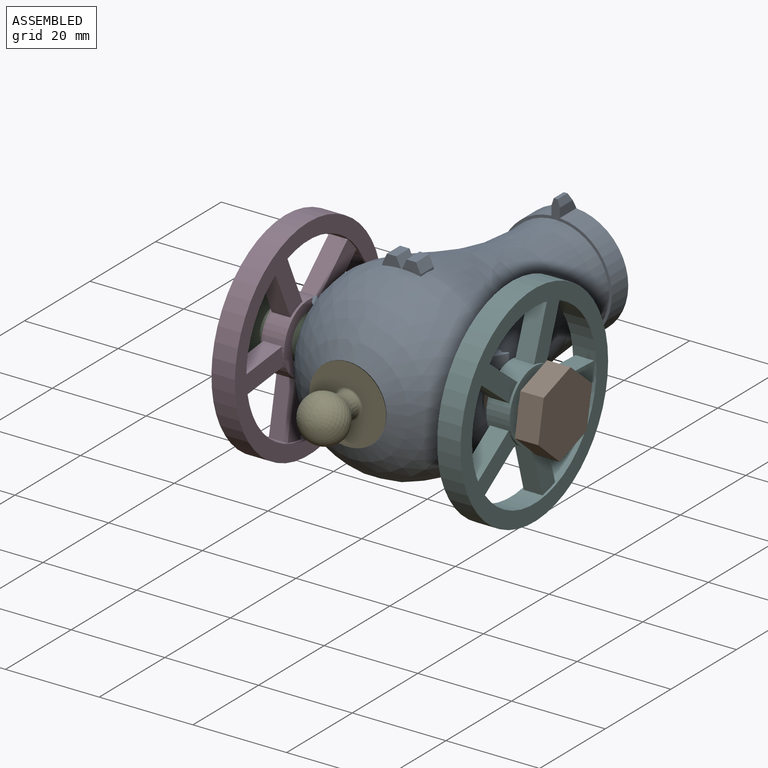
[diagram: assembled view]
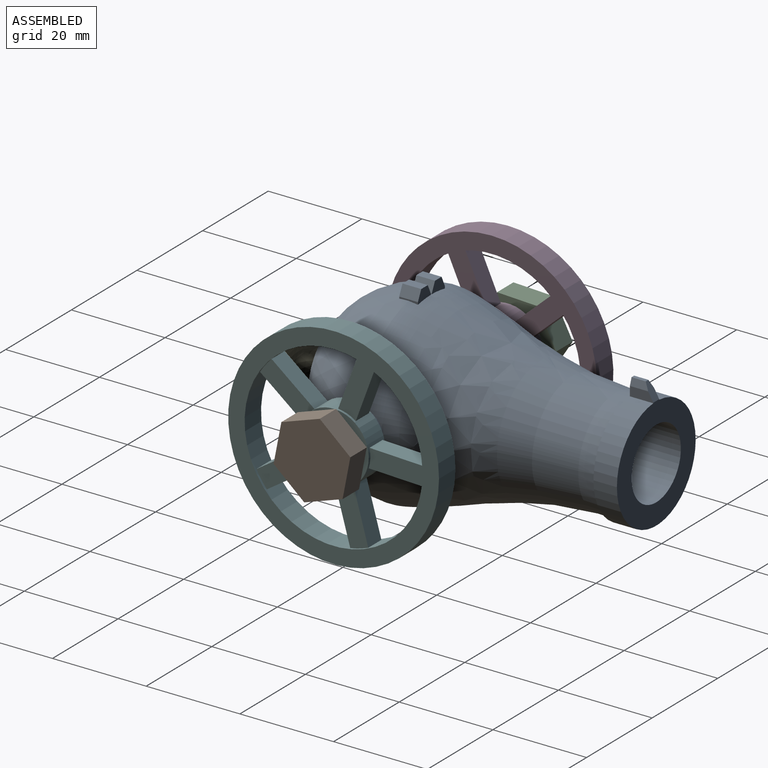
[diagram: assembled view, second angle]
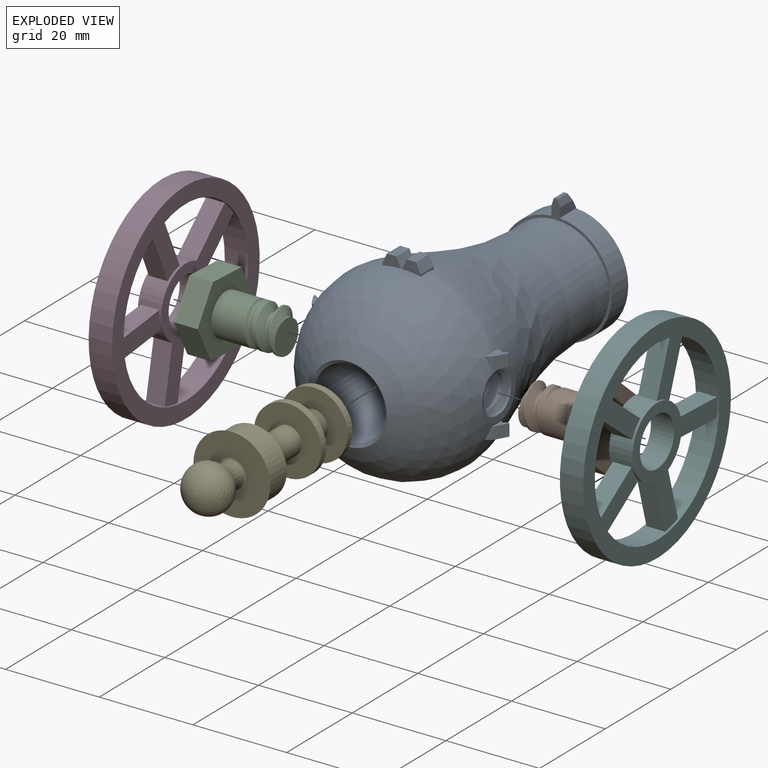
[diagram: exploded view]
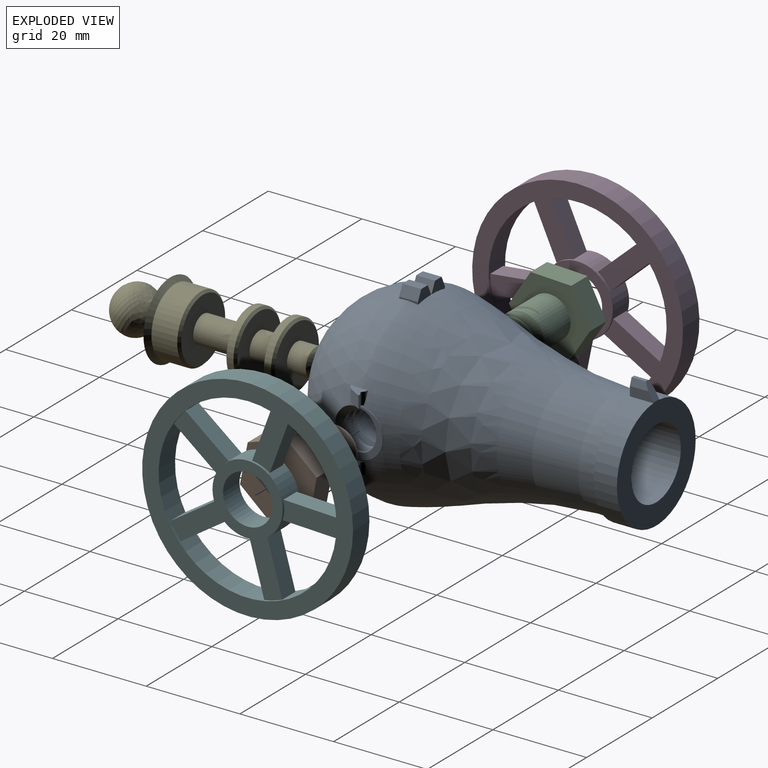
[diagram: exploded view, second angle]
ASSEMBLY  parts=6 mates=5
PART A: 88 faces, bbox 121.1x147.7x121.4 mm
  f0: sphere r=20mm, area 2165.9mm2, adj f1,f14,f15,f18,f19,f22,f24,f26
  f1: revolved ~45x40mm, area 8242.6mm2, adj f0,f5,f12,f13,f15,f17,f18,f20
  f2: cylinder r=12mm len=24mm, axis (0,1,0), area 368mm2, adj f3,f5,f6,f10
  f3: plane 24.07x24mm, normal (0,1,0), area 275.8mm2, adj f2,f4,f6,f10,f11
  f4: cylinder r=7.5mm len=67.77mm, axis (0,1,0), area 3193.8mm2, adj f3,f87
  f5: plane 27.47x24mm, normal (0,-1,0), area 48.4mm2, adj f1,f2,f6,f7,f8,f9,f10
  f6: plane 5x2mm, normal (-1,0,0), area 9mm2, adj f2,f3,f5,f7,f11
  f7: plane 3.9x1.5mm, normal (-0.95,0,0.32), area 5.5mm2, adj f5,f6,f8,f11
  f8: plane 3.04x0.8mm, normal (0,0,1), area 2.4mm2, adj f5,f7,f9,f11
  f9: plane 3.9x1.5mm, normal (0.95,0,0.32), area 5.5mm2, adj f5,f8,f10,f11
  f10: plane 5x2mm, normal (1,0,0), area 9mm2, adj f2,f3,f5,f9,f11
  f11: plane 3.4x1.96mm, normal (0,0.87,0.5), area 6.2mm2, adj f3,f6,f7,f8,f9,f10
  f12: plane 4x2.65mm, normal (0,1,0), area 7.3mm2, adj f1,f13,f15,f16,f24,f25
  f13: plane 0.51x0.08mm, normal (-1,0,0), area 0mm2, adj f1,f12,f24
  f14: plane 3.98x2.53mm, normal (0,-1,0), area 6.8mm2, adj f0,f15,f16,f24,f25
  f15: plane 4.06x0.56mm, normal (1,0,0), area 1.4mm2, adj f0,f1,f12,f14,f25
  f16: plane 4x2mm, normal (0,0,1), area 8mm2, adj f12,f14,f24,f25
  f17: plane 4x2.65mm, normal (0,1,0), area 7.3mm2, adj f1,f18,f20,f21,f22,f23
  f18: plane 4.06x0.56mm, normal (-1,0,0), area 1.4mm2, adj f0,f1,f17,f19,f23
  f19: plane 3.98x2.53mm, normal (0,-1,0), area 6.8mm2, adj f0,f18,f21,f22,f23
  f20: plane 79.93x79.5mm, normal (1,0,0), area 0mm2, adj f1,f17,f22
  f21: plane 4x2mm, normal (0,0,1), area 8mm2, adj f17,f19,f22,f23
  f22: plane 83.42x81.57mm, normal (0.91,0,0.42), area 9.1mm2, adj f0,f1,f17,f19,f20,f21
  f23: plane 4x2.14mm, normal (-0.91,0,0.42), area 9.5mm2, adj f17,f18,f19,f21
  f24: plane 4.03x2.18mm, normal (-0.91,0,0.42), area 9.1mm2, adj f0,f1,f12,f13,f14,f16
  f25: plane 4x2.14mm, normal (0.91,0,0.42), area 9.5mm2, adj f12,f14,f15,f16
  f26: bspline ~12.05x10.43mm, area 19mm2, adj f0,f27,f28,f31,f33,f38
  f27: bspline ~11.79x10.21mm, area 80.1mm2, adj f26,f30,f35,f36,f38
  f28: bspline ~11.79x10.21mm, area 61.7mm2, adj f26,f29,f36,f37,f38
  f29: bspline ~9.58x8.96mm, area 22.3mm2, adj f28,f31,f34,f35,f39
  f30: bspline ~9.62x9.04mm, area 22.2mm2, adj f27,f31,f34,f39
  f31: bspline ~9.85x9.27mm, area 10.3mm2, adj f26,f29,f30,f39
  f32: plane 10x10mm, normal (-1,0,0), area 34.4mm2, adj f34,f40
  f33: cylinder r=5.16mm len=10.31mm, axis (1,0,0), area 1.2mm2, adj f0,f1,f26,f38
  f34: cylinder r=3.75mm len=7.5mm, axis (1,0,0), area 41.8mm2, adj f29,f30,f32,f35,f39
  f35: cylinder r=3.75mm len=7.5mm, axis (1,0,0), area 23.2mm2, adj f27,f29,f34,f36
  f36: cylinder r=3.75mm len=7.5mm, axis (1,0,0), area 14.7mm2, adj f27,f28,f35,f37
  f37: cylinder r=3.75mm len=3.75mm, axis (1,0,0), area 1.8mm2, adj f28,f36,f38
  f38: plane 11x11mm, normal (1,0,0), area 23.3mm2, adj f26,f27,f28,f33,f37
  f39: plane 0.44x0.19mm, normal (0.03,1,-0.01), area 0.1mm2, adj f29,f30,f31,f34
  f40: cone r=0mm half-angle=59deg, axis (1,0,0), area 91.6mm2, adj f32
  f41: cone r=0mm half-angle=59deg, axis (-1,0,0), area 91.6mm2, adj f46,f47
  f42: bspline ~12.15x10.52mm, area 36.1mm2, adj f0,f44,f45,f46,f48,f49
  f43: bspline ~6.21x4.79mm, area 5.5mm2, adj f45,f49,f50
  f44: bspline ~11.83x10.44mm, area 130.4mm2, adj f42,f46,f47,f49,f50
  f45: bspline ~11.83x10.25mm, area 123.3mm2, adj f42,f43,f46,f47,f49,f50
  f46: plane 3.77x3.71mm, normal (-1,0,0), area 0.9mm2, adj f41,f42,f44,f45
  f47: plane 10.67x10.67mm, normal (1,0,0), area 22.3mm2, adj f41,f44,f45,f50
  f48: cylinder r=5.19mm len=10.38mm, axis (1,0,0), area 1.5mm2, adj f0,f1,f42,f49
  f49: plane 10.95x10.95mm, normal (-1,0,0), area 28.8mm2, adj f42,f43,f44,f45,f48,f50
  f50: cylinder r=3.5mm len=7.67mm, axis (1,0,0), area 42.8mm2, adj f43,f44,f45,f47,f49
  f51: plane 0.92x0.38mm, normal (0,1,0), area 0.2mm2, adj f1,f53,f58
  f52: plane 3.06x1.7mm, normal (0,0,-1), area 2.4mm2, adj f0,f1,f54,f55,f56,f57,f58,f59
  f53: plane 3.72x2.74mm, normal (0,0,1), area 5.5mm2, adj f0,f1,f51,f54,f55,f56,f57,f58
  f54: cylinder r=0.5mm len=2.59mm, axis (0,0,1), area 2.2mm2, adj f52,f53,f57,f58
  f55: plane 2.59x1.94mm, normal (-0.87,-0.49,0), area 5.7mm2, adj f52,f53,f56,f59
  f56: cylinder r=3mm len=2.59mm, axis (0,0,1), area 3.9mm2, adj f0,f52,f53,f55
  f57: cylinder r=1mm len=2.59mm, axis (0,0,1), area 2.2mm2, adj f52,f53,f54,f59
  f58: cylinder r=1mm len=2.59mm, axis (0,0,1), area 1.7mm2, adj f1,f51,f52,f53,f54
  f59: cylinder r=0.5mm len=2.59mm, axis (0,0,1), area 1.1mm2, adj f52,f53,f55,f57
  f60: plane 0.92x0.38mm, normal (0,1,0), area 0.2mm2, adj f1,f62,f67
  f61: plane 3.06x1.7mm, normal (0,0,-1), area 2.4mm2, adj f0,f1,f63,f64,f65,f66,f67,f68
  f62: plane 3.72x2.74mm, normal (0,0,1), area 5.5mm2, adj f0,f1,f60,f63,f64,f65,f66,f67
  f63: cylinder r=0.5mm len=2.59mm, axis (0,0,1), area 2.2mm2, adj f61,f62,f66,f67
  f64: plane 2.59x1.94mm, normal (0.87,-0.49,0), area 5.7mm2, adj f61,f62,f65,f68
  f65: cylinder r=3mm len=2.59mm, axis (0,0,1), area 3.9mm2, adj f0,f61,f62,f64
  f66: cylinder r=1mm len=2.59mm, axis (0,0,1), area 2.2mm2, adj f61,f62,f63,f68
  f67: cylinder r=1mm len=2.59mm, axis (0,0,1), area 1.7mm2, adj f1,f60,f61,f62,f63
  f68: cylinder r=0.5mm len=2.59mm, axis (0,0,1), area 1.1mm2, adj f61,f62,f64,f66
  f69: plane 0.92x0.38mm, normal (0,1,0), area 0.2mm2, adj f1,f71,f76
  f70: plane 3.06x1.7mm, normal (0,0,1), area 2.4mm2, adj f0,f1,f72,f73,f74,f75,f76,f77
  f71: plane 3.72x2.74mm, normal (0,0,-1), area 5.5mm2, adj f0,f1,f69,f72,f73,f74,f75,f76
  f72: cylinder r=0.5mm len=2.59mm, axis (0,0,-1), area 2.2mm2, adj f70,f71,f75,f76
  f73: plane 2.59x1.94mm, normal (-0.87,-0.49,0), area 5.7mm2, adj f70,f71,f74,f77
  f74: cylinder r=3mm len=2.59mm, axis (0,0,-1), area 3.9mm2, adj f0,f70,f71,f73
  f75: cylinder r=1mm len=2.59mm, axis (0,0,-1), area 2.2mm2, adj f70,f71,f72,f77
  f76: cylinder r=1mm len=2.59mm, axis (0,0,-1), area 1.7mm2, adj f1,f69,f70,f71,f72
  f77: cylinder r=0.5mm len=2.59mm, axis (0,0,-1), area 1.1mm2, adj f70,f71,f73,f75
  f78: plane 0.92x0.38mm, normal (0,1,0), area 0.2mm2, adj f1,f80,f85
  f79: plane 3.06x1.7mm, normal (0,0,1), area 2.4mm2, adj f0,f1,f81,f82,f83,f84,f85,f86
  f80: plane 3.72x2.74mm, normal (0,0,-1), area 5.5mm2, adj f0,f1,f78,f81,f82,f83,f84,f85
  f81: cylinder r=0.5mm len=2.59mm, axis (0,0,-1), area 2.2mm2, adj f79,f80,f84,f85
  f82: plane 2.59x1.94mm, normal (0.87,-0.49,0), area 5.7mm2, adj f79,f80,f83,f86
  f83: cylinder r=3mm len=2.59mm, axis (0,0,-1), area 3.9mm2, adj f0,f79,f80,f82
  f84: cylinder r=1mm len=2.59mm, axis (0,0,-1), area 2.2mm2, adj f79,f80,f81,f86
  f85: cylinder r=1mm len=2.59mm, axis (0,0,-1), area 1.7mm2, adj f1,f78,f79,f80,f81
  f86: cylinder r=0.5mm len=2.59mm, axis (0,0,-1), area 1.1mm2, adj f79,f80,f82,f84
  f87: cone r=8.21mm half-angle=57.1deg, axis (0,-1,0), area 41.9mm2, adj f0,f4
PART B: 18 faces, bbox 18.1x15.8x20 mm
  f0: cylinder r=4.5mm len=11.5mm, axis (0,0,1), area 233.1mm2, adj f1,f10,f13,f14,f15,f17
  f1: cylinder r=4.5mm len=9mm, axis (0,0,1), area 5.9mm2, adj f0,f2,f12,f13
  f2: plane 8.05x8.04mm, normal (0,0,-1), area 41.1mm2, adj f1,f11,f12,f13
  f3: plane 7.5x5mm, normal (-0.87,-0.5,0), area 43.3mm2, adj f4,f8,f9,f10
  f4: plane 8.66x5mm, normal (0,-1,0), area 43.3mm2, adj f3,f5,f9,f10
  f5: plane 7.5x5mm, normal (0.87,-0.5,0), area 43.3mm2, adj f4,f6,f9,f10
  f6: plane 7.5x5mm, normal (0.87,0.5,0), area 43.3mm2, adj f5,f7,f9,f10
  f7: plane 8.66x5mm, normal (0,1,0), area 43.3mm2, adj f6,f8,f9,f10
  f8: plane 7.5x5mm, normal (-0.87,0.5,0), area 43.3mm2, adj f3,f7,f9,f10
  f9: plane 17.32x15mm, normal (0,0,1), area 194.9mm2, adj f3,f4,f5,f6,f7,f8
  f10: plane 17.32x15mm, normal (0,0,-1), area 131.2mm2, adj f0,f3,f4,f5,f6,f7,f8
  f11: bspline ~6.64x5.75mm, area 15.6mm2, adj f2,f12,f13,f16
  f12: bspline ~10.39x9mm, area 33.6mm2, adj f1,f2,f11,f15
  f13: bspline ~10.39x9mm, area 59.3mm2, adj f0,f1,f2,f11,f17
  f14: plane 0.92x0.31mm, normal (0.01,-1,0.03), area 0.2mm2, adj f0,f15,f16,f17
  f15: bspline ~11.24x10.5mm, area 25.3mm2, adj f0,f12,f14,f16
  f16: bspline ~8.02x7.29mm, area 18.6mm2, adj f11,f14,f15,f17
  f17: bspline ~11.28x10.57mm, area 25.1mm2, adj f0,f13,f14,f16
PART C: same geometry as B
PART D: 28 faces, bbox 5x45x45 mm
  f0: cylinder r=19mm len=38mm, axis (-1,0,0), area 516.8mm2, adj f2,f3,f8,f9,f10,f11,f12,f13
  f1: cylinder r=22.5mm len=45mm, axis (-1,0,0), area 706.9mm2, adj f2,f3
  f2: plane 45x45mm, normal (1,0,0), area 456.3mm2, adj f0,f1
  f3: plane 45x45mm, normal (-1,0,0), area 456.3mm2, adj f0,f1
  f4: cylinder r=5.25mm len=10.5mm, axis (-1,0,0), area 164.9mm2, adj f6,f7
  f5: cylinder r=7.5mm len=15mm, axis (-1,0,0), area 154.6mm2, adj f6,f7,f8,f9,f10,f11,f12,f13
  f6: plane 15x15mm, normal (1,0,0), area 90.1mm2, adj f4,f5
  f7: plane 15x15mm, normal (-1,0,0), area 90.1mm2, adj f4,f5
  f8: plane 9.44x6.86mm, normal (0,-0.81,-0.59), area 46.7mm2, adj f0,f5,f10,f11
  f9: plane 9.44x6.86mm, normal (0,0.81,0.59), area 46.7mm2, adj f0,f5,f10,f11
  f10: plane 11.79x10.09mm, normal (1,0,0), area 46.2mm2, adj f0,f5,f8,f9
  f11: plane 11.79x10.09mm, normal (-1,0,0), area 46.2mm2, adj f0,f5,f8,f9
  f12: plane 11.1x4mm, normal (0,-0.31,0.95), area 46.7mm2, adj f0,f5,f14,f15
  f13: plane 11.1x4mm, normal (0,0.31,-0.95), area 46.7mm2, adj f0,f5,f14,f15
  f14: plane 12.33x7.41mm, normal (1,0,0), area 46.2mm2, adj f0,f5,f12,f13
  f15: plane 12.33x7.41mm, normal (-1,0,0), area 46.2mm2, adj f0,f5,f12,f13
  f16: plane 11.67x4mm, normal (0,1,0), area 46.7mm2, adj f0,f5,f18,f19
  f17: plane 11.67x4mm, normal (0,-1,0), area 46.7mm2, adj f0,f5,f18,f19
  f18: plane 11.77x4mm, normal (1,0,0), area 46.2mm2, adj f0,f5,f16,f17
  f19: plane 11.77x4mm, normal (-1,0,0), area 46.2mm2, adj f0,f5,f16,f17
  f20: plane 11.1x4mm, normal (0,-0.31,-0.95), area 46.7mm2, adj f0,f5,f22,f23
  f21: plane 11.1x4mm, normal (0,0.31,0.95), area 46.7mm2, adj f0,f5,f22,f23
  f22: plane 12.33x7.41mm, normal (1,0,0), area 46.2mm2, adj f0,f5,f20,f21
  f23: plane 12.33x7.41mm, normal (-1,0,0), area 46.2mm2, adj f0,f5,f20,f21
  f24: plane 9.44x6.86mm, normal (0,-0.81,0.59), area 46.7mm2, adj f0,f5,f26,f27
  f25: plane 9.44x6.86mm, normal (0,0.81,-0.59), area 46.7mm2, adj f0,f5,f26,f27
  f26: plane 11.79x10.09mm, normal (1,0,0), area 46.2mm2, adj f0,f5,f24,f25
  f27: plane 11.79x10.09mm, normal (-1,0,0), area 46.2mm2, adj f0,f5,f24,f25
PART E: 20 faces, bbox 16.4x44x16.4 mm
  f0: torus R=3.16mm, axis (0,-1,0), area 13mm2, adj f1,f15
  f1: plane 16.4x16.4mm, normal (0,1,0), area 179.9mm2, adj f0,f2
  f2: cone r=8.2mm half-angle=45deg, axis (0,1,0), area 68.4mm2, adj f1,f3
  f3: cylinder r=7.2mm len=14.4mm, axis (0,-1,0), area 248.8mm2, adj f2,f19
  f4: plane 13.4x13.4mm, normal (0,-1,0), area 112.8mm2, adj f5,f19
  f5: cylinder r=3mm len=10mm, axis (0,-1,0), area 188.5mm2, adj f4,f6
  f6: plane 14.4x14.4mm, normal (0,1,0), area 134.6mm2, adj f5,f7
  f7: cylinder r=7.2mm len=14.4mm, axis (0,-1,0), area 67.9mm2, adj f6,f18
  f8: plane 13.4x13.4mm, normal (0,-1,0), area 112.8mm2, adj f9,f18
  f9: cylinder r=3mm len=6mm, axis (0,-1,0), area 113.1mm2, adj f8,f10
  f10: plane 14.4x14.4mm, normal (0,1,0), area 134.6mm2, adj f9,f11
  f11: cylinder r=7.2mm len=14.4mm, axis (0,-1,0), area 67.9mm2, adj f10,f17
  f12: plane 13.4x13.4mm, normal (0,-1,0), area 112.8mm2, adj f13,f17
  f13: cylinder r=3mm len=6mm, axis (0,-1,0), area 75.4mm2, adj f12,f16
  f14: plane 4x4mm, normal (0,-1,0), area 12.6mm2, adj f16
  f15: revolved ~11.56x10.01mm, area 321.7mm2, adj f0
  f16: cone r=2mm half-angle=45deg, axis (0,1,0), area 22.2mm2, adj f13,f14
  f17: cone r=6.7mm half-angle=45deg, axis (0,1,0), area 30.9mm2, adj f11,f12
  f18: cone r=6.7mm half-angle=45deg, axis (0,1,0), area 30.9mm2, adj f7,f8
  f19: cone r=6.7mm half-angle=45deg, axis (0,1,0), area 30.9mm2, adj f3,f4
PART F: same geometry as D
PLACE A t=(-4.1,50,0)mm
PLACE B rot(axis=(-0.67,0.31,-0.67),145.9deg) t=(24.44,0,0)mm
PLACE C rot(axis=(-0.27,-0.92,0.27),94.5deg) t=(-32.68,0,0)mm
PLACE D rot(axis=(-1,0,0),47.5deg) t=(-27.81,0,0)mm
PLACE E rot(axis=(-0.03,0,-1),180deg) t=(-4.1,-25.38,0)mm
PLACE F rot(axis=(-1,0,0),20.3deg) t=(20.35,0,0)mm
MATE cylindrical E.f0 <-> A.f4  axis (0,1,0) through (-4.1,3.62,0)mm
MATE cylindrical C.f0 <-> D.f0  axis (-1,0,0) through (-26.18,0,0)mm
MATE cylindrical F.f4 <-> B.f0  axis (1,0,0) through (22.85,0,0)mm
MATE cylindrical C.f0 <-> A.f33  axis (-1,0,0) through (-32.68,0,0)mm
MATE cylindrical B.f0 <-> A.f33  axis (-1,0,0) through (24.44,0,0)mm
